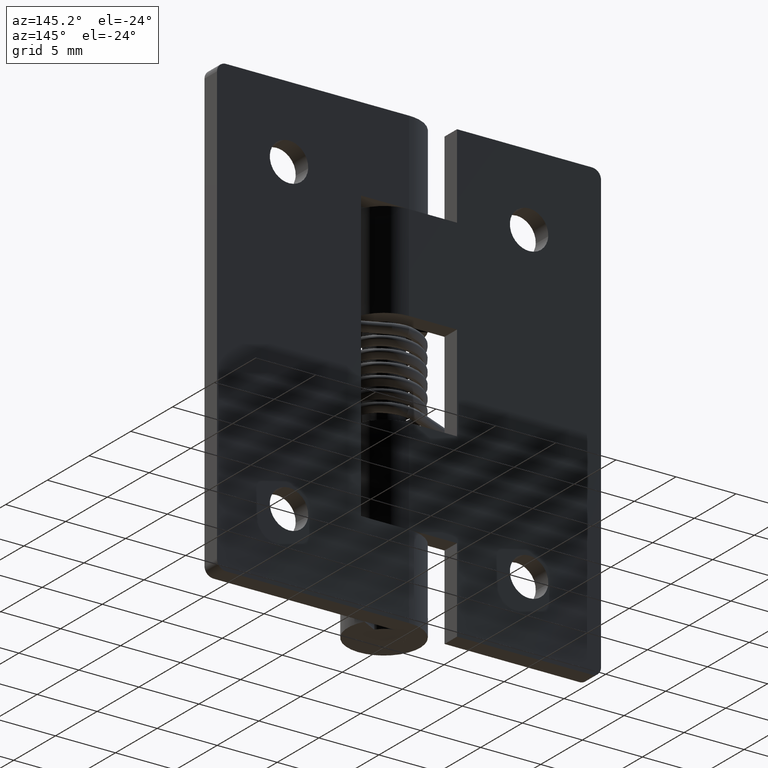
[diagram: clean part render]
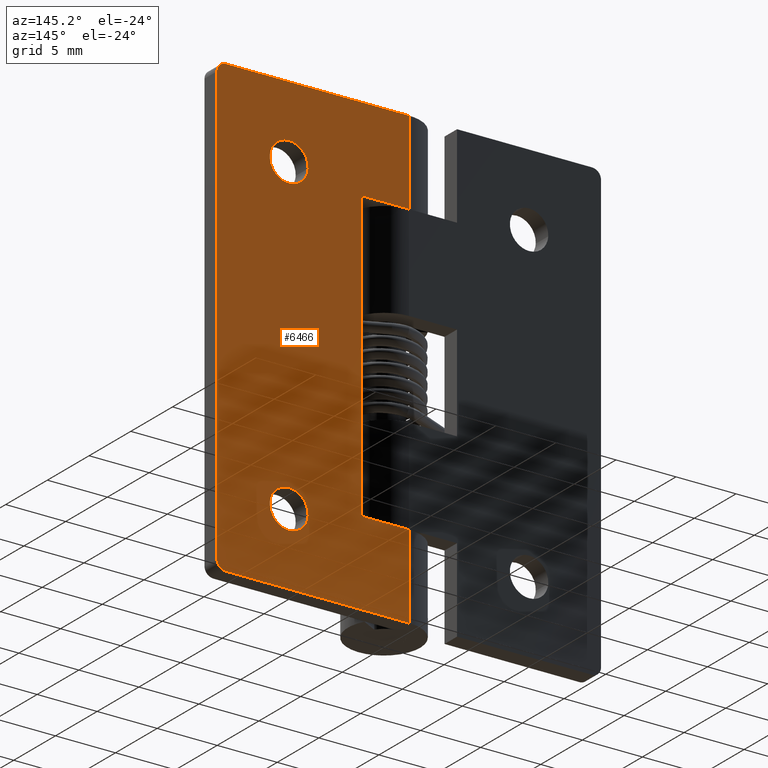
[diagram: same view with one face highlighted and labeled with its STEP entity id]
A machine part, auxiliary view. The second image highlights one B-rep face of the part: STEP entity #6466.
In plain terms, the highlighted face is a freeform B-spline surface patch.
Its self-contained STEP definition (entity closure, byte-faithful):
#5446=CARTESIAN_POINT('',(11.588815242173940,3.0,6.188854775517521));
#5447=VERTEX_POINT('',#5446);
#5453=CARTESIAN_POINT('',(10.0,3.0,4.400000000000000));
#5454=VERTEX_POINT('',#5453);
#5455=CARTESIAN_POINT('',(11.588815242173935,3.000000000000000,6.188854775517521));
#5456=CARTESIAN_POINT('',(11.600000000000007,3.0,6.094758591510471));
#5457=CARTESIAN_POINT('',(11.600000000000000,3.0,6.0));
#5458=CARTESIAN_POINT('',(11.600000000000001,3.0,4.400000000000001));
#5459=CARTESIAN_POINT('',(10.0,3.0,4.400000000000000));
#5467=(BOUNDED_CURVE()B_SPLINE_CURVE(2,(#5455,#5456,#5457,#5458,#5459),.UNSPECIFIED.,.F.,.U.)B_SPLINE_CURVE_WITH_KNOTS((3,2,3),(0.229562473501453,0.250000000000000,0.500000000000000),.UNSPECIFIED.)CURVE()GEOMETRIC_REPRESENTATION_ITEM()RATIONAL_B_SPLINE_CURVE((0.956026754160070,0.976055948317021,1.0,0.707106781186548,1.0))REPRESENTATION_ITEM(''));
#5468=EDGE_CURVE('',#5447,#5454,#5467,.T.);
#5470=CARTESIAN_POINT('',(8.402984322530001,3.0,5.902322336662665));
#5471=VERTEX_POINT('',#5470);
#5472=CARTESIAN_POINT('',(10.0,3.0,4.400000000000000));
#5473=CARTESIAN_POINT('',(8.494870293104919,3.000000000000000,4.400000000000000));
#5474=CARTESIAN_POINT('',(8.402984322530001,3.0,5.902322336662665));
#5482=(BOUNDED_CURVE()B_SPLINE_CURVE(2,(#5472,#5473,#5474),.UNSPECIFIED.,.F.,.U.)B_SPLINE_CURVE_WITH_KNOTS((3,3),(0.500000000000000,0.739332962224343),.UNSPECIFIED.)CURVE()GEOMETRIC_REPRESENTATION_ITEM()RATIONAL_B_SPLINE_CURVE((1.0,0.719603993303815,0.976072041635428))REPRESENTATION_ITEM(''));
#5483=EDGE_CURVE('',#5454,#5471,#5482,.T.);
#5557=CARTESIAN_POINT('',(10.0,3.0,7.600000000000000));
#5558=VERTEX_POINT('',#5557);
#5559=CARTESIAN_POINT('',(8.402984322530001,3.0,5.902322336662665));
#5560=CARTESIAN_POINT('',(8.399999999999999,3.000000000000000,5.951115578640466));
#5561=CARTESIAN_POINT('',(8.400000000000000,3.0,6.0));
#5562=CARTESIAN_POINT('',(8.400000000000000,3.0,7.600000000000000));
#5563=CARTESIAN_POINT('',(10.0,3.0,7.600000000000000));
#5571=(BOUNDED_CURVE()B_SPLINE_CURVE(2,(#5559,#5560,#5561,#5562,#5563),.UNSPECIFIED.,.F.,.U.)B_SPLINE_CURVE_WITH_KNOTS((3,2,3),(0.739332962224343,0.750000000000000,1.0),.UNSPECIFIED.)CURVE()GEOMETRIC_REPRESENTATION_ITEM()RATIONAL_B_SPLINE_CURVE((0.976072041635428,0.987502787882733,1.0,0.707106781186548,1.0))REPRESENTATION_ITEM(''));
#5572=EDGE_CURVE('',#5471,#5558,#5571,.T.);
#5574=CARTESIAN_POINT('',(10.0,3.0,7.600000000000000));
#5575=CARTESIAN_POINT('',(11.421079241402019,3.000000000000001,7.599999999999999));
#5576=CARTESIAN_POINT('',(11.588815242173935,3.000000000000000,6.188854775517521));
#5584=(BOUNDED_CURVE()B_SPLINE_CURVE(2,(#5574,#5575,#5576),.UNSPECIFIED.,.F.,.U.)B_SPLINE_CURVE_WITH_KNOTS((3,3),(0.0,0.229562473501453),.UNSPECIFIED.)CURVE()GEOMETRIC_REPRESENTATION_ITEM()RATIONAL_B_SPLINE_CURVE((1.0,0.731050832869527,0.956026754160070))REPRESENTATION_ITEM(''));
#5585=EDGE_CURVE('',#5558,#5447,#5584,.T.);
#5632=CARTESIAN_POINT('',(11.588815242173940,3.0,32.188854775517527));
#5633=VERTEX_POINT('',#5632);
#5639=CARTESIAN_POINT('',(10.0,3.0,30.399999999999999));
#5640=VERTEX_POINT('',#5639);
#5641=CARTESIAN_POINT('',(11.588815242173942,3.000000000000000,32.188854775517520));
#5642=CARTESIAN_POINT('',(11.600000000000000,3.0,32.094758591510470));
#5643=CARTESIAN_POINT('',(11.600000000000000,3.0,32.0));
#5644=CARTESIAN_POINT('',(11.600000000000001,3.0,30.400000000000002));
#5645=CARTESIAN_POINT('',(10.0,3.0,30.399999999999999));
#5653=(BOUNDED_CURVE()B_SPLINE_CURVE(2,(#5641,#5642,#5643,#5644,#5645),.UNSPECIFIED.,.F.,.U.)B_SPLINE_CURVE_WITH_KNOTS((3,2,3),(0.229562473501452,0.250000000000000,0.500000000000000),.UNSPECIFIED.)CURVE()GEOMETRIC_REPRESENTATION_ITEM()RATIONAL_B_SPLINE_CURVE((0.956026754160069,0.976055948317021,1.0,0.707106781186548,1.0))REPRESENTATION_ITEM(''));
#5654=EDGE_CURVE('',#5633,#5640,#5653,.T.);
#5656=CARTESIAN_POINT('',(8.402984322530003,3.0,31.902322336662671));
#5657=VERTEX_POINT('',#5656);
#5658=CARTESIAN_POINT('',(10.0,3.0,30.399999999999999));
#5659=CARTESIAN_POINT('',(8.494870293104919,3.000000000000000,30.399999999999999));
#5660=CARTESIAN_POINT('',(8.402984322530003,3.0,31.902322336662671));
#5668=(BOUNDED_CURVE()B_SPLINE_CURVE(2,(#5658,#5659,#5660),.UNSPECIFIED.,.F.,.U.)B_SPLINE_CURVE_WITH_KNOTS((3,3),(0.500000000000000,0.739332962224343),.UNSPECIFIED.)CURVE()GEOMETRIC_REPRESENTATION_ITEM()RATIONAL_B_SPLINE_CURVE((1.0,0.719603993303815,0.976072041635428))REPRESENTATION_ITEM(''));
#5669=EDGE_CURVE('',#5640,#5657,#5668,.T.);
#5743=CARTESIAN_POINT('',(10.0,3.0,33.600000000000001));
#5744=VERTEX_POINT('',#5743);
#5745=CARTESIAN_POINT('',(8.402984322530003,3.000000000000000,31.902322336662671));
#5746=CARTESIAN_POINT('',(8.400000000000002,3.000000000000000,31.951115578640469));
#5747=CARTESIAN_POINT('',(8.400000000000000,3.0,32.0));
#5748=CARTESIAN_POINT('',(8.400000000000000,3.0,33.600000000000001));
#5749=CARTESIAN_POINT('',(10.0,3.0,33.600000000000001));
#5757=(BOUNDED_CURVE()B_SPLINE_CURVE(2,(#5745,#5746,#5747,#5748,#5749),.UNSPECIFIED.,.F.,.U.)B_SPLINE_CURVE_WITH_KNOTS((3,2,3),(0.739332962224344,0.750000000000000,1.0),.UNSPECIFIED.)CURVE()GEOMETRIC_REPRESENTATION_ITEM()RATIONAL_B_SPLINE_CURVE((0.976072041635429,0.987502787882733,1.0,0.707106781186548,1.0))REPRESENTATION_ITEM(''));
#5758=EDGE_CURVE('',#5657,#5744,#5757,.T.);
#5760=CARTESIAN_POINT('',(10.0,3.0,33.600000000000001));
#5761=CARTESIAN_POINT('',(11.421079241402014,3.0,33.600000000000001));
#5762=CARTESIAN_POINT('',(11.588815242173933,3.000000000000000,32.188854775517527));
#5770=(BOUNDED_CURVE()B_SPLINE_CURVE(2,(#5760,#5761,#5762),.UNSPECIFIED.,.F.,.U.)B_SPLINE_CURVE_WITH_KNOTS((3,3),(0.0,0.229562473501452),.UNSPECIFIED.)CURVE()GEOMETRIC_REPRESENTATION_ITEM()RATIONAL_B_SPLINE_CURVE((1.0,0.731050832869527,0.956026754160069))REPRESENTATION_ITEM(''));
#5771=EDGE_CURVE('',#5744,#5633,#5770,.T.);
#5808=CARTESIAN_POINT('',(16.0,3.0,37.250000000000000));
#5809=VERTEX_POINT('',#5808);
#5815=CARTESIAN_POINT('',(15.250000000000000,3.0,38.0));
#5816=VERTEX_POINT('',#5815);
#5817=CARTESIAN_POINT('',(16.0,3.0,37.250000000000000));
#5818=CARTESIAN_POINT('',(15.999999999999998,3.0,38.0));
#5819=CARTESIAN_POINT('',(15.250000000000000,3.0,38.0));
#5827=(BOUNDED_CURVE()B_SPLINE_CURVE(2,(#5817,#5818,#5819),.UNSPECIFIED.,.F.,.U.)CURVE()GEOMETRIC_REPRESENTATION_ITEM()QUASI_UNIFORM_CURVE()RATIONAL_B_SPLINE_CURVE((1.0,0.707106781186548,1.0))REPRESENTATION_ITEM(''));
#5828=EDGE_CURVE('',#5809,#5816,#5827,.T.);
#5869=CARTESIAN_POINT('',(15.250000000000000,3.0,0.0));
#5870=VERTEX_POINT('',#5869);
#5876=CARTESIAN_POINT('',(16.0,3.0,0.750000000000000));
#5877=VERTEX_POINT('',#5876);
#5878=CARTESIAN_POINT('',(15.250000000000000,3.0,0.0));
#5879=CARTESIAN_POINT('',(15.999999999999998,3.0,0.0));
#5880=CARTESIAN_POINT('',(16.0,3.0,0.750000000000000));
#5888=(BOUNDED_CURVE()B_SPLINE_CURVE(2,(#5878,#5879,#5880),.UNSPECIFIED.,.F.,.U.)CURVE()GEOMETRIC_REPRESENTATION_ITEM()QUASI_UNIFORM_CURVE()RATIONAL_B_SPLINE_CURVE((1.0,0.707106781186548,1.0))REPRESENTATION_ITEM(''));
#5889=EDGE_CURVE('',#5870,#5877,#5888,.T.);
#5904=CARTESIAN_POINT('',(0.0,3.0,6.999992000000000));
#5905=VERTEX_POINT('',#5904);
#5962=CARTESIAN_POINT('',(4.0,3.0,6.999992000000000));
#5963=VERTEX_POINT('',#5962);
#5969=CARTESIAN_POINT('',(4.0,3.0,6.999992000000000));
#5970=CARTESIAN_POINT('',(0.0,3.0,6.999992000000000));
#5971=QUASI_UNIFORM_CURVE('',1,(#5969,#5970),.UNSPECIFIED.,.F.,.U.);
#5972=EDGE_CURVE('',#5963,#5905,#5971,.T.);
#5984=CARTESIAN_POINT('',(0.0,3.0,31.0));
#5985=VERTEX_POINT('',#5984);
#6005=CARTESIAN_POINT('',(4.0,3.0,31.0));
#6006=VERTEX_POINT('',#6005);
#6007=CARTESIAN_POINT('',(0.0,3.0,31.0));
#6008=CARTESIAN_POINT('',(4.0,3.0,31.0));
#6009=QUASI_UNIFORM_CURVE('',1,(#6007,#6008),.UNSPECIFIED.,.F.,.U.);
#6010=EDGE_CURVE('',#5985,#6006,#6009,.T.);
#6066=CARTESIAN_POINT('',(4.0,3.0,31.0));
#6067=CARTESIAN_POINT('',(4.0,3.0,6.999992000000000));
#6068=QUASI_UNIFORM_CURVE('',1,(#6066,#6067),.UNSPECIFIED.,.F.,.U.);
#6069=EDGE_CURVE('',#6006,#5963,#6068,.T.);
#6088=CARTESIAN_POINT('',(0.0,3.0,38.0));
#6089=VERTEX_POINT('',#6088);
#6090=CARTESIAN_POINT('',(0.0,3.0,38.0));
#6091=CARTESIAN_POINT('',(15.250000000000000,3.0,38.0));
#6092=QUASI_UNIFORM_CURVE('',1,(#6090,#6091),.UNSPECIFIED.,.F.,.U.);
#6093=EDGE_CURVE('',#6089,#5816,#6092,.T.);
#6186=CARTESIAN_POINT('',(0.0,3.0,0.0));
#6187=VERTEX_POINT('',#6186);
#6207=CARTESIAN_POINT('',(0.0,3.0,0.0));
#6208=CARTESIAN_POINT('',(15.250000000000000,3.0,0.0));
#6209=QUASI_UNIFORM_CURVE('',1,(#6207,#6208),.UNSPECIFIED.,.F.,.U.);
#6210=EDGE_CURVE('',#6187,#5870,#6209,.T.);
#6344=CARTESIAN_POINT('',(0.0,3.0,0.0));
#6345=CARTESIAN_POINT('',(0.0,3.0,6.999992000000000));
#6346=QUASI_UNIFORM_CURVE('',1,(#6344,#6345),.UNSPECIFIED.,.F.,.U.);
#6347=EDGE_CURVE('',#6187,#5905,#6346,.T.);
#6379=CARTESIAN_POINT('',(0.0,3.0,31.0));
#6380=CARTESIAN_POINT('',(0.0,3.0,38.0));
#6381=QUASI_UNIFORM_CURVE('',1,(#6379,#6380),.UNSPECIFIED.,.F.,.U.);
#6382=EDGE_CURVE('',#5985,#6089,#6381,.T.);
#6392=CARTESIAN_POINT('',(16.0,3.0,0.750000000000000));
#6393=CARTESIAN_POINT('',(16.0,3.0,37.250000000000000));
#6394=QUASI_UNIFORM_CURVE('',1,(#6392,#6393),.UNSPECIFIED.,.F.,.U.);
#6395=EDGE_CURVE('',#5877,#5809,#6394,.T.);
#6437=CARTESIAN_POINT('',(-0.799199968988895,3.0,39.898099926348621));
#6438=CARTESIAN_POINT('',(-0.799199968988895,3.0,-1.898100945588053));
#6439=CARTESIAN_POINT('',(16.799200398142339,3.0,39.898099926348621));
#6440=CARTESIAN_POINT('',(16.799200398142339,3.0,-1.898100945588053));
#6441=B_SPLINE_SURFACE_WITH_KNOTS('',1,1,((#6437,#6439),(#6438,#6440)),.UNSPECIFIED.,.F.,.F.,.U.,(2,2),(2,2),(0.0,41.796200871936684),(0.0,17.598400367131230),.UNSPECIFIED.);
#6442=ORIENTED_EDGE('',*,*,#5828,.F.);
#6443=ORIENTED_EDGE('',*,*,#6395,.F.);
#6444=ORIENTED_EDGE('',*,*,#5889,.F.);
#6445=ORIENTED_EDGE('',*,*,#6210,.F.);
#6446=ORIENTED_EDGE('',*,*,#6347,.T.);
#6447=ORIENTED_EDGE('',*,*,#5972,.F.);
#6448=ORIENTED_EDGE('',*,*,#6069,.F.);
#6449=ORIENTED_EDGE('',*,*,#6010,.F.);
#6450=ORIENTED_EDGE('',*,*,#6382,.T.);
#6451=ORIENTED_EDGE('',*,*,#6093,.T.);
#6452=EDGE_LOOP('',(#6442,#6443,#6444,#6445,#6446,#6447,#6448,#6449,#6450,#6451));
#6453=FACE_OUTER_BOUND('',#6452,.T.);
#6454=ORIENTED_EDGE('',*,*,#5669,.F.);
#6455=ORIENTED_EDGE('',*,*,#5654,.F.);
#6456=ORIENTED_EDGE('',*,*,#5771,.F.);
#6457=ORIENTED_EDGE('',*,*,#5758,.F.);
#6458=EDGE_LOOP('',(#6454,#6455,#6456,#6457));
#6459=FACE_BOUND('',#6458,.T.);
#6460=ORIENTED_EDGE('',*,*,#5483,.F.);
#6461=ORIENTED_EDGE('',*,*,#5468,.F.);
#6462=ORIENTED_EDGE('',*,*,#5585,.F.);
#6463=ORIENTED_EDGE('',*,*,#5572,.F.);
#6464=EDGE_LOOP('',(#6460,#6461,#6462,#6463));
#6465=FACE_BOUND('',#6464,.T.);
#6466=ADVANCED_FACE('',(#6453,#6459,#6465),#6441,.F.);